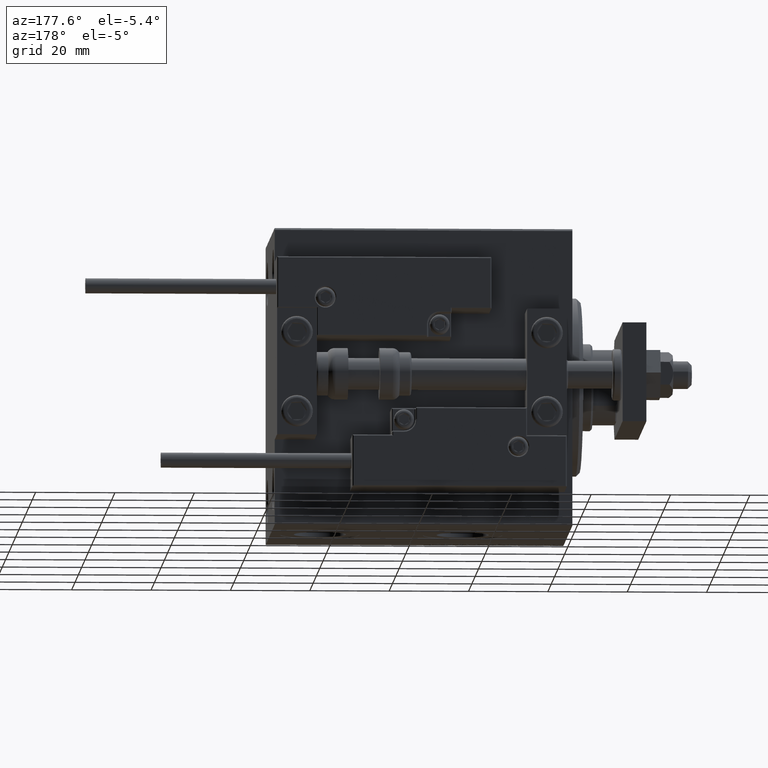
[diagram: clean part render]
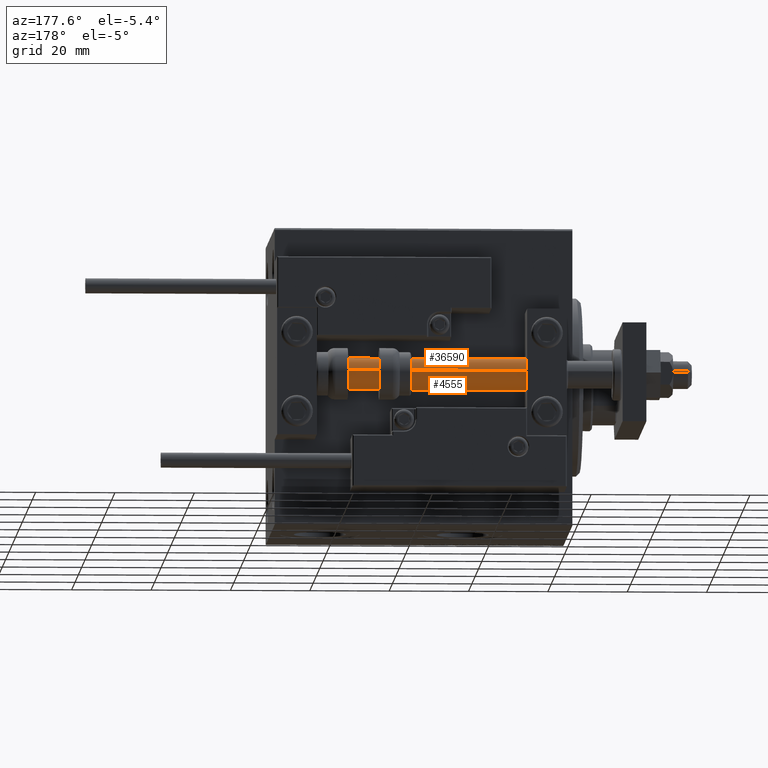
[diagram: same view with one multi-face feature highlighted, each face labeled with its STEP entity id]
A machine part, auxiliary view. The highlighted faces form ONE feature: a constant-radius fillet chain: 2 tangent blend faces with common blend radius 4 mm. The faces share edges in the B-rep.
Their STEP definitions:
[1] entity #36590 (Cylinder):
#1700 = CARTESIAN_POINT ( 'NONE',  ( -4.000000000000000000, 0.000000000000000000, 2.000000000000029310 ) ) ;
#1715 = EDGE_CURVE ( 'NONE', #45554, #6906, #47763, .T. ) ;
#1895 = DIRECTION ( 'NONE',  ( -1.000000000000000000, 0.000000000000000000, 0.000000000000000000 ) ) ;
#2819 = VECTOR ( 'NONE', #42630, 1000.000000000000000 ) ;
#5229 = AXIS2_PLACEMENT_3D ( 'NONE', #37493, #44526, #1895 ) ;
#6906 = VERTEX_POINT ( 'NONE', #1700 ) ;
#8675 = DIRECTION ( 'NONE',  ( 1.000000000000000000, 0.000000000000000000, 0.000000000000000000 ) ) ;
#11286 = AXIS2_PLACEMENT_3D ( 'NONE', #23781, #47667, #20399 ) ;
#13082 = CARTESIAN_POINT ( 'NONE',  ( 4.000000000000000000, 4.898587196589412829E-16, 2.000000000000029310 ) ) ;
#13685 = VERTEX_POINT ( 'NONE', #25150 ) ;
#16982 = CARTESIAN_POINT ( 'NONE',  ( 0.000000000000000000, 0.000000000000000000, 75.00000000000000000 ) ) ;
#18548 = CIRCLE ( 'NONE', #23557, 4.000000000000000000 ) ;
#19354 = ORIENTED_EDGE ( 'NONE', *, *, #38695, .F. ) ;
#20399 = DIRECTION ( 'NONE',  ( 1.000000000000000000, 0.000000000000000000, 0.000000000000000000 ) ) ;
#21045 = CARTESIAN_POINT ( 'NONE',  ( 4.000000000000000000, 4.898587196589412829E-16, 75.00000000000000000 ) ) ;
#22976 = VERTEX_POINT ( 'NONE', #21045 ) ;
#23557 = AXIS2_PLACEMENT_3D ( 'NONE', #16982, #40866, #8675 ) ;
#23781 = CARTESIAN_POINT ( 'NONE',  ( 0.000000000000000000, 0.000000000000000000, 2.000000000000029310 ) ) ;
#25150 = CARTESIAN_POINT ( 'NONE',  ( -4.000000000000000000, 0.000000000000000000, 75.00000000000000000 ) ) ;
#25301 = CARTESIAN_POINT ( 'NONE',  ( -4.000000000000000000, 0.000000000000000000, 75.00000000000000000 ) ) ;
#26076 = LINE ( 'NONE', #25301, #32671 ) ;
#32671 = VECTOR ( 'NONE', #41926, 1000.000000000000000 ) ;
#33550 = LINE ( 'NONE', #49387, #2819 ) ;
#36551 = ORIENTED_EDGE ( 'NONE', *, *, #41630, .F. ) ;
#36590 = ADVANCED_FACE ( 'NONE', ( #40877 ), #41398, .T. ) ;
#37493 = CARTESIAN_POINT ( 'NONE',  ( 0.000000000000000000, 0.000000000000000000, 75.00000000000000000 ) ) ;
#38695 = EDGE_CURVE ( 'NONE', #13685, #6906, #26076, .T. ) ;
#38707 = EDGE_LOOP ( 'NONE', ( #36551, #39164, #39230, #19354 ) ) ;
#39164 = ORIENTED_EDGE ( 'NONE', *, *, #42445, .T. ) ;
#39230 = ORIENTED_EDGE ( 'NONE', *, *, #1715, .T. ) ;
#40866 = DIRECTION ( 'NONE',  ( 0.000000000000000000, 0.000000000000000000, 1.000000000000000000 ) ) ;
#40877 = FACE_OUTER_BOUND ( 'NONE', #38707, .T. ) ;
#41398 = CYLINDRICAL_SURFACE ( 'NONE', #5229, 4.000000000000000000 ) ;
#41630 = EDGE_CURVE ( 'NONE', #22976, #13685, #18548, .T. ) ;
#41926 = DIRECTION ( 'NONE',  ( -0.000000000000000000, -0.000000000000000000, -1.000000000000000000 ) ) ;
#42445 = EDGE_CURVE ( 'NONE', #22976, #45554, #33550, .T. ) ;
#42630 = DIRECTION ( 'NONE',  ( -0.000000000000000000, -0.000000000000000000, -1.000000000000000000 ) ) ;
#44526 = DIRECTION ( 'NONE',  ( -0.000000000000000000, -0.000000000000000000, -1.000000000000000000 ) ) ;
#45554 = VERTEX_POINT ( 'NONE', #13082 ) ;
#47667 = DIRECTION ( 'NONE',  ( -0.000000000000000000, -0.000000000000000000, 1.000000000000000000 ) ) ;
#47763 = CIRCLE ( 'NONE', #11286, 4.000000000000000000 ) ;
#49387 = CARTESIAN_POINT ( 'NONE',  ( 4.000000000000000000, 4.898587196589412829E-16, 75.00000000000000000 ) ) ;
[2] entity #4555 (Cylinder):
#1005 = AXIS2_PLACEMENT_3D ( 'NONE', #31043, #31301, #10538 ) ;
#1700 = CARTESIAN_POINT ( 'NONE',  ( -4.000000000000000000, 0.000000000000000000, 2.000000000000029310 ) ) ;
#2819 = VECTOR ( 'NONE', #42630, 1000.000000000000000 ) ;
#4555 = ADVANCED_FACE ( 'NONE', ( #22774 ), #27189, .T. ) ;
#6906 = VERTEX_POINT ( 'NONE', #1700 ) ;
#9228 = DIRECTION ( 'NONE',  ( 1.000000000000000000, 0.000000000000000000, 0.000000000000000000 ) ) ;
#10538 = DIRECTION ( 'NONE',  ( 1.000000000000000000, 0.000000000000000000, 0.000000000000000000 ) ) ;
#11247 = EDGE_CURVE ( 'NONE', #13685, #22976, #19184, .T. ) ;
#11603 = DIRECTION ( 'NONE',  ( -1.000000000000000000, 0.000000000000000000, 0.000000000000000000 ) ) ;
#13082 = CARTESIAN_POINT ( 'NONE',  ( 4.000000000000000000, 4.898587196589412829E-16, 2.000000000000029310 ) ) ;
#13685 = VERTEX_POINT ( 'NONE', #25150 ) ;
#14025 = EDGE_CURVE ( 'NONE', #6906, #45554, #23409, .T. ) ;
#18371 = AXIS2_PLACEMENT_3D ( 'NONE', #24312, #40164, #9228 ) ;
#19184 = CIRCLE ( 'NONE', #18371, 4.000000000000000000 ) ;
#20967 = ORIENTED_EDGE ( 'NONE', *, *, #11247, .F. ) ;
#21045 = CARTESIAN_POINT ( 'NONE',  ( 4.000000000000000000, 4.898587196589412829E-16, 75.00000000000000000 ) ) ;
#22774 = FACE_OUTER_BOUND ( 'NONE', #24202, .T. ) ;
#22976 = VERTEX_POINT ( 'NONE', #21045 ) ;
#23409 = CIRCLE ( 'NONE', #1005, 4.000000000000000000 ) ;
#24202 = EDGE_LOOP ( 'NONE', ( #42495, #20967, #27519, #25622 ) ) ;
#24312 = CARTESIAN_POINT ( 'NONE',  ( 0.000000000000000000, 0.000000000000000000, 75.00000000000000000 ) ) ;
#25150 = CARTESIAN_POINT ( 'NONE',  ( -4.000000000000000000, 0.000000000000000000, 75.00000000000000000 ) ) ;
#25301 = CARTESIAN_POINT ( 'NONE',  ( -4.000000000000000000, 0.000000000000000000, 75.00000000000000000 ) ) ;
#25622 = ORIENTED_EDGE ( 'NONE', *, *, #14025, .T. ) ;
#26076 = LINE ( 'NONE', #25301, #32671 ) ;
#27189 = CYLINDRICAL_SURFACE ( 'NONE', #38146, 4.000000000000000000 ) ;
#27519 = ORIENTED_EDGE ( 'NONE', *, *, #38695, .T. ) ;
#31043 = CARTESIAN_POINT ( 'NONE',  ( 0.000000000000000000, 0.000000000000000000, 2.000000000000029310 ) ) ;
#31301 = DIRECTION ( 'NONE',  ( -0.000000000000000000, -0.000000000000000000, 1.000000000000000000 ) ) ;
#32671 = VECTOR ( 'NONE', #41926, 1000.000000000000000 ) ;
#33550 = LINE ( 'NONE', #49387, #2819 ) ;
#38146 = AXIS2_PLACEMENT_3D ( 'NONE', #51059, #46412, #11603 ) ;
#38695 = EDGE_CURVE ( 'NONE', #13685, #6906, #26076, .T. ) ;
#40164 = DIRECTION ( 'NONE',  ( 0.000000000000000000, 0.000000000000000000, 1.000000000000000000 ) ) ;
#41926 = DIRECTION ( 'NONE',  ( -0.000000000000000000, -0.000000000000000000, -1.000000000000000000 ) ) ;
#42445 = EDGE_CURVE ( 'NONE', #22976, #45554, #33550, .T. ) ;
#42495 = ORIENTED_EDGE ( 'NONE', *, *, #42445, .F. ) ;
#42630 = DIRECTION ( 'NONE',  ( -0.000000000000000000, -0.000000000000000000, -1.000000000000000000 ) ) ;
#45554 = VERTEX_POINT ( 'NONE', #13082 ) ;
#46412 = DIRECTION ( 'NONE',  ( -0.000000000000000000, -0.000000000000000000, -1.000000000000000000 ) ) ;
#49387 = CARTESIAN_POINT ( 'NONE',  ( 4.000000000000000000, 4.898587196589412829E-16, 75.00000000000000000 ) ) ;
#51059 = CARTESIAN_POINT ( 'NONE',  ( 0.000000000000000000, 0.000000000000000000, 75.00000000000000000 ) ) ;